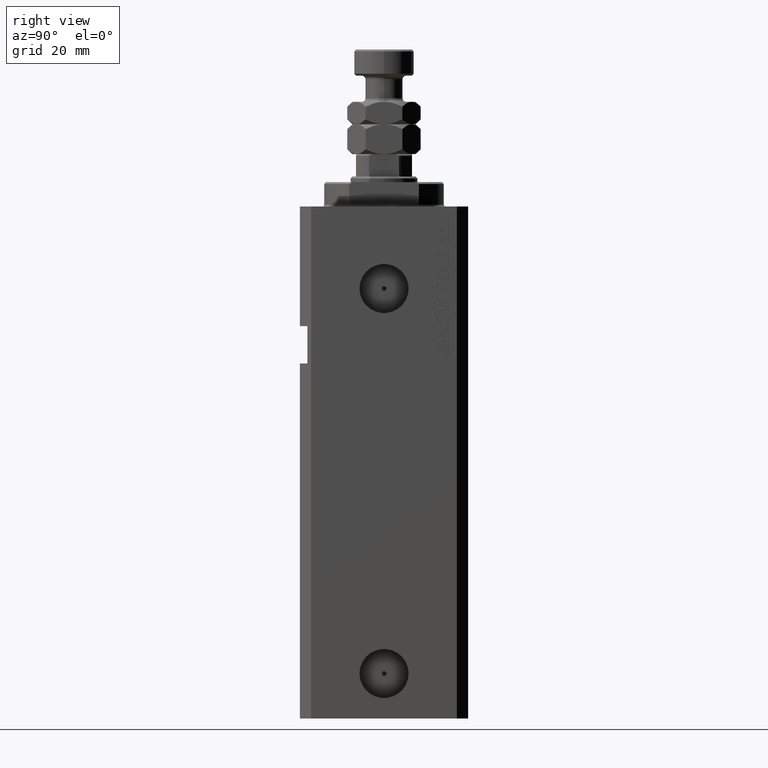
[diagram: clean part render]
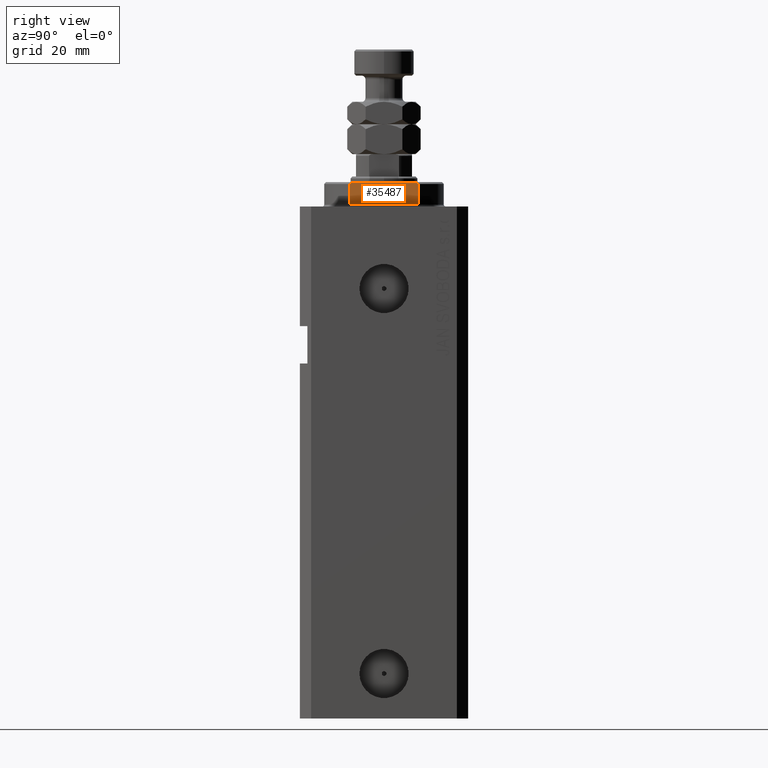
[diagram: same view with one face highlighted and labeled with its STEP entity id]
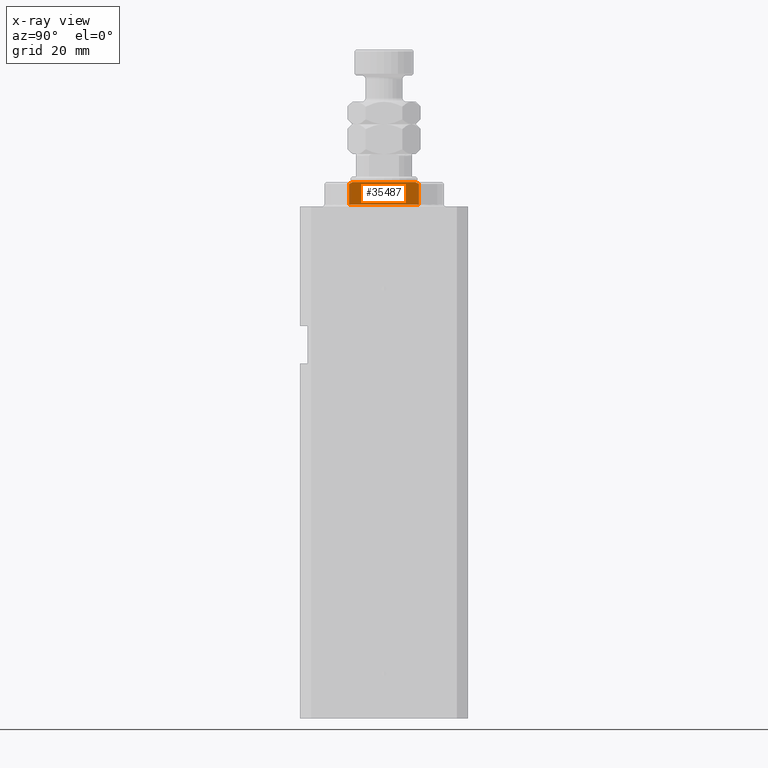
[diagram: x-ray of the same camera — body ghosted, the highlighted face saturated]
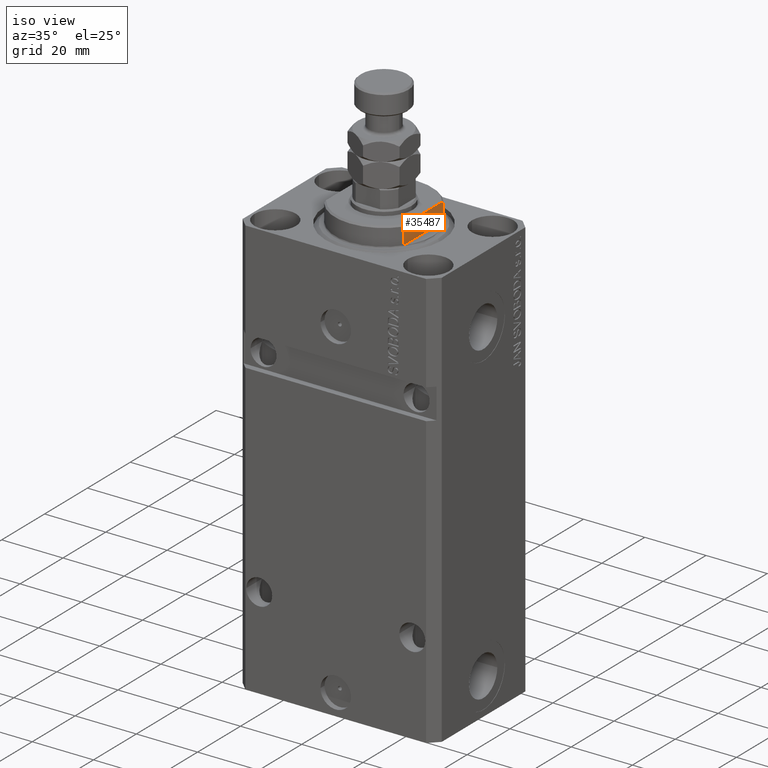
[diagram: same view with one face highlighted and labeled with its STEP entity id]
A machine part, right view. The second image highlights one B-rep face of the part: STEP entity #35487.
The next image is the same camera in x-ray: the body ghosted, the highlighted face saturated — about 0% of this face is hidden behind the body in this view.
A second angle (iso view) of the same face is appended — the face is thin or edge-on in the first view.
In plain terms, the highlighted planar face has unit normal (-1, 0, 0).
Its self-contained STEP definition (entity closure, byte-faithful):
#104 = CARTESIAN_POINT ( 'NONE',  ( -13.00000000000000000, -8.440971508067139695, -6.500000000000000000 ) ) ;
#1337 = PLANE ( 'NONE',  #9958 ) ;
#1666 = VECTOR ( 'NONE', #25952, 1000.000000000000000 ) ;
#3391 = CARTESIAN_POINT ( 'NONE',  ( -13.00000000000000000, -8.440971508067139695, -6.500000000000000000 ) ) ;
#4283 = LINE ( 'NONE', #11425, #1666 ) ;
#4603 = ORIENTED_EDGE ( 'NONE', *, *, #15582, .T. ) ;
#5453 = VECTOR ( 'NONE', #15060, 1000.000000000000000 ) ;
#5761 = EDGE_CURVE ( 'NONE', #17689, #20586, #11220, .T. ) ;
#6478 = CARTESIAN_POINT ( 'NONE',  ( -13.00000000000000000, 9.327379053088813876, -6.500000000000000000 ) ) ;
#6958 = EDGE_CURVE ( 'NONE', #22809, #8112, #17388, .T. ) ;
#7222 = LINE ( 'NONE', #43927, #5453 ) ;
#8112 = VERTEX_POINT ( 'NONE', #39705 ) ;
#9958 = AXIS2_PLACEMENT_3D ( 'NONE', #22766, #41634, #27070 ) ;
#10057 = CARTESIAN_POINT ( 'NONE',  ( -13.00000000000000000, -8.738941625005658409, -6.337731789204286592 ) ) ;
#11009 = VECTOR ( 'NONE', #38271, 1000.000000000000000 ) ;
#11220 = B_SPLINE_CURVE_WITH_KNOTS ( 'NONE', 3,
 ( #14158, #36104, #17973, #28935 ),
 .UNSPECIFIED., .F., .F.,
 ( 4, 4 ),
 ( 0.03031084603841392722, 0.03132841702658674399 ),
 .UNSPECIFIED. ) ;
#11425 = CARTESIAN_POINT ( 'NONE',  ( -13.00000000000000000, -43.08131845707602992, -0.4999999999999995559 ) ) ;
#12744 = LINE ( 'NONE', #23704, #11009 ) ;
#14158 = CARTESIAN_POINT ( 'NONE',  ( -13.00000000000000000, 9.327379053088916905, -6.000000000000014211 ) ) ;
#15060 = DIRECTION ( 'NONE',  ( 0.000000000000000000, 0.000000000000000000, -1.000000000000000000 ) ) ;
#15172 = CARTESIAN_POINT ( 'NONE',  ( -13.00000000000000000, 9.327379053088916905, -6.000000000000014211 ) ) ;
#15582 = EDGE_CURVE ( 'NONE', #20586, #22809, #12744, .T. ) ;
#16956 = EDGE_LOOP ( 'NONE', ( #33641, #4603, #26924, #33520, #23344, #21977 ) ) ;
#17388 = B_SPLINE_CURVE_WITH_KNOTS ( 'NONE', 3,
 ( #3391, #10057, #42970, #17454 ),
 .UNSPECIFIED., .F., .F.,
 ( 4, 4 ),
 ( 0.04915043732154475431, 0.05017913261572017058 ),
 .UNSPECIFIED. ) ;
#17454 = CARTESIAN_POINT ( 'NONE',  ( -13.00000000000000000, -9.327379053088815652, -6.000000000000023981 ) ) ;
#17689 = VERTEX_POINT ( 'NONE', #15172 ) ;
#17973 = CARTESIAN_POINT ( 'NONE',  ( -13.00000000000000000, 8.738667591047022398, -6.337881022290549282 ) ) ;
#20586 = VERTEX_POINT ( 'NONE', #35705 ) ;
#21977 = ORIENTED_EDGE ( 'NONE', *, *, #41396, .F. ) ;
#22276 = CARTESIAN_POINT ( 'NONE',  ( -13.00000000000000000, 9.327379053088815652, -0.4999999999999995559 ) ) ;
#22766 = CARTESIAN_POINT ( 'NONE',  ( -13.00000000000000000, -43.08131845707602992, -0.4999999999999995559 ) ) ;
#22809 = VERTEX_POINT ( 'NONE', #104 ) ;
#23344 = ORIENTED_EDGE ( 'NONE', *, *, #38221, .F. ) ;
#23704 = CARTESIAN_POINT ( 'NONE',  ( -13.00000000000000000, -43.08131845707602992, -6.500000000000000000 ) ) ;
#24360 = CARTESIAN_POINT ( 'NONE',  ( -13.00000000000000000, -9.327379053088815652, -0.4999999999999995559 ) ) ;
#25952 = DIRECTION ( 'NONE',  ( -0.000000000000000000, -1.000000000000000000, -0.000000000000000000 ) ) ;
#26924 = ORIENTED_EDGE ( 'NONE', *, *, #6958, .T. ) ;
#27070 = DIRECTION ( 'NONE',  ( 0.000000000000000000, 0.000000000000000000, -1.000000000000000000 ) ) ;
#28935 = CARTESIAN_POINT ( 'NONE',  ( -13.00000000000000000, 8.440971508067139695, -6.500000000000000000 ) ) ;
#29685 = VERTEX_POINT ( 'NONE', #22276 ) ;
#30658 = FACE_OUTER_BOUND ( 'NONE', #16956, .T. ) ;
#33520 = ORIENTED_EDGE ( 'NONE', *, *, #37690, .F. ) ;
#33641 = ORIENTED_EDGE ( 'NONE', *, *, #5761, .T. ) ;
#35487 = ADVANCED_FACE ( 'NONE', ( #30658 ), #1337, .F. ) ;
#35705 = CARTESIAN_POINT ( 'NONE',  ( -13.00000000000000000, 8.440971508067139695, -6.500000000000000000 ) ) ;
#36104 = CARTESIAN_POINT ( 'NONE',  ( -13.00000000000000000, 9.034035639617135516, -6.171007825636148247 ) ) ;
#37690 = EDGE_CURVE ( 'NONE', #43291, #8112, #7222, .T. ) ;
#38221 = EDGE_CURVE ( 'NONE', #29685, #43291, #4283, .T. ) ;
#38271 = DIRECTION ( 'NONE',  ( -0.000000000000000000, -1.000000000000000000, -0.000000000000000000 ) ) ;
#38291 = VECTOR ( 'NONE', #39608, 1000.000000000000000 ) ;
#39608 = DIRECTION ( 'NONE',  ( -0.000000000000000000, -0.000000000000000000, 1.000000000000000000 ) ) ;
#39705 = CARTESIAN_POINT ( 'NONE',  ( -13.00000000000000000, -9.327379053088815652, -6.000000000000023981 ) ) ;
#41396 = EDGE_CURVE ( 'NONE', #17689, #29685, #42717, .T. ) ;
#41634 = DIRECTION ( 'NONE',  ( 1.000000000000000000, 0.000000000000000000, 0.000000000000000000 ) ) ;
#42717 = LINE ( 'NONE', #6478, #38291 ) ;
#42970 = CARTESIAN_POINT ( 'NONE',  ( -13.00000000000000000, -9.034292940839598884, -6.170857829009066542 ) ) ;
#43291 = VERTEX_POINT ( 'NONE', #24360 ) ;
#43927 = CARTESIAN_POINT ( 'NONE',  ( -13.00000000000000000, -9.327379053088813876, -6.500000000000000000 ) ) ;